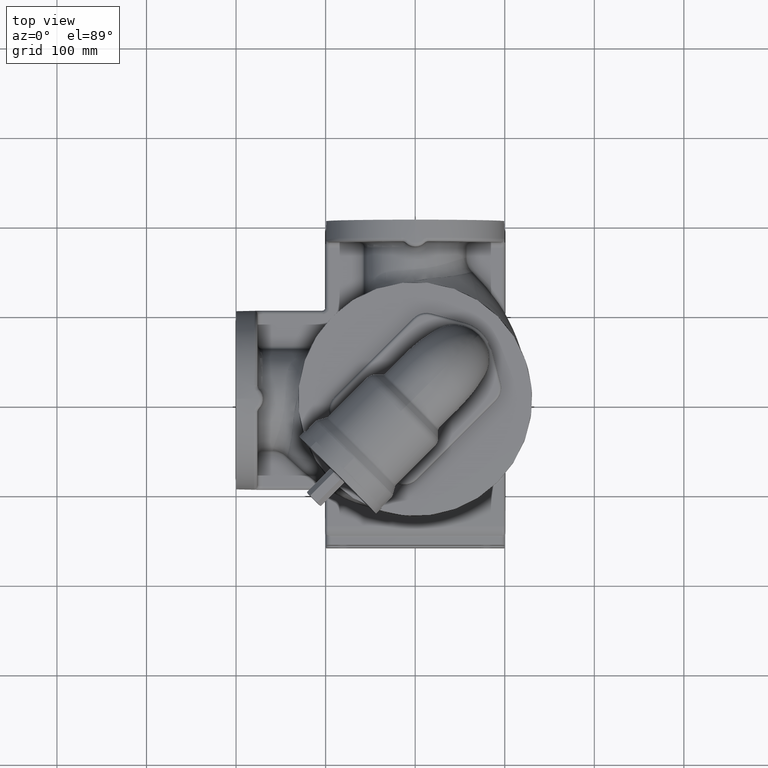
[diagram: clean part render]
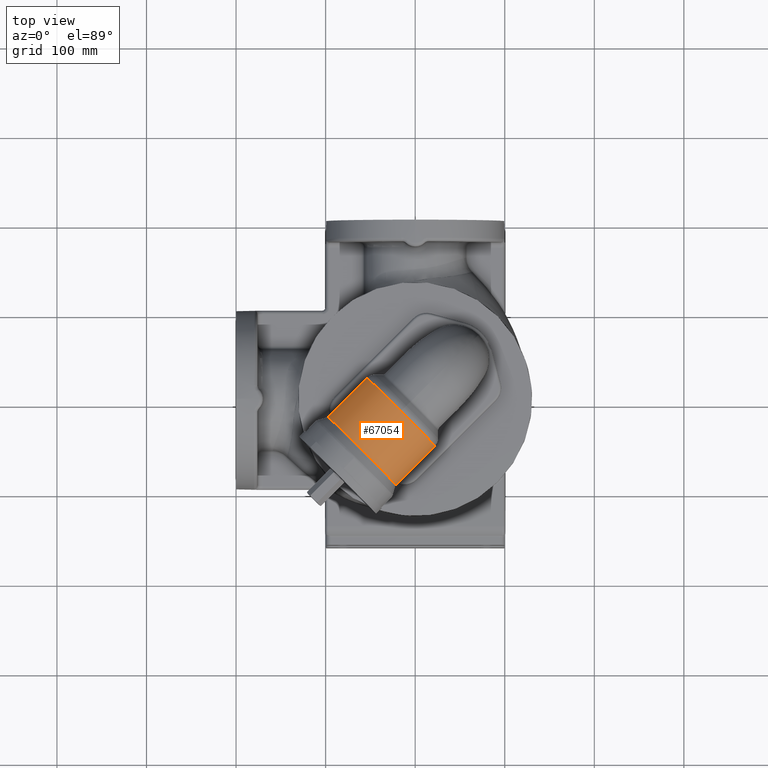
[diagram: same view with one face highlighted and labeled with its STEP entity id]
A machine part, top view. The second image highlights one B-rep face of the part: STEP entity #67054.
In plain terms, the highlighted cylindrical surface (partial cylindrical patch) has radius 54 mm, axis along (-0.7071, -0.7071, 0).
Its self-contained STEP definition (entity closure, byte-faithful):
#15534=CARTESIAN_POINT('',(-7.518984942224E0,-2.425918965083E1,
1.863133529900E2));
#15551=CARTESIAN_POINT('',(-2.425918965083E1,-7.518984942225E0,
1.863133529900E2));
#15583=CARTESIAN_POINT('',(-5.942235361104E1,-5.942235361104E1,2.39E2));
#15584=DIRECTION('',(-7.071067811865E-1,-7.071067811865E-1,0.E0));
#15585=DIRECTION('',(4.396053184643E-1,-4.396053184643E-1,-7.832587873467E-1));
#15586=AXIS2_PLACEMENT_3D('',#15583,#15584,#15585);
#15588=CARTESIAN_POINT('',(-8.316104080811E1,-3.568366641397E1,
1.967040254833E2));
#15589=CARTESIAN_POINT('',(-8.306502850757E1,-3.534713051201E1,
1.968390197705E2));
#15590=CARTESIAN_POINT('',(-8.286564048663E1,-3.467954031279E1,
1.971051392192E2));
#15591=CARTESIAN_POINT('',(-8.254484323903E1,-3.369327251899E1,
1.974924102545E2));
#15592=CARTESIAN_POINT('',(-8.220388502708E1,-3.272448906897E1,
1.978660577686E2));
#15593=CARTESIAN_POINT('',(-8.184413610980E1,-3.177446545072E1,
1.982248911215E2));
#15594=CARTESIAN_POINT('',(-8.146707413907E1,-3.084451051866E1,
1.985677987216E2));
#15595=CARTESIAN_POINT('',(-8.107403842639E1,-2.993535448442E1,
1.988939854637E2));
#15596=CARTESIAN_POINT('',(-8.066633700146E1,-2.904755217902E1,
1.992028128318E2));
#15597=CARTESIAN_POINT('',(-8.024517288405E1,-2.818136175681E1,
1.994938390296E2));
#15598=CARTESIAN_POINT('',(-7.981163747957E1,-2.733680532606E1,
1.997667860401E2));
#15599=CARTESIAN_POINT('',(-7.936669853628E1,-2.651369708532E1,
2.000215182625E2));
#15600=CARTESIAN_POINT('',(-7.891119133880E1,-2.571167203196E1,
2.002580197040E2));
#15601=CARTESIAN_POINT('',(-7.844582004519E1,-2.493022418164E1,
2.004763684417E2));
#15602=CARTESIAN_POINT('',(-7.797115920626E1,-2.416873561732E1,
2.006767151017E2));
#15603=CARTESIAN_POINT('',(-7.748765835416E1,-2.342650454800E1,
2.008592625184E2));
#15604=CARTESIAN_POINT('',(-7.699564735739E1,-2.270276905179E1,
2.010242478511E2));
#15605=CARTESIAN_POINT('',(-7.649534347989E1,-2.199672870046E1,
2.011719267888E2));
#15606=CARTESIAN_POINT('',(-7.598685900564E1,-2.130756304605E1,
2.013025601556E2));
#15607=CARTESIAN_POINT('',(-7.547020842808E1,-2.063444652139E1,
2.014164028436E2));
#15608=CARTESIAN_POINT('',(-7.494531617626E1,-1.997656083967E1,
2.015136952417E2));
#15609=CARTESIAN_POINT('',(-7.441202277915E1,-1.933310511943E1,
2.015946556314E2));
#15610=CARTESIAN_POINT('',(-7.387009080919E1,-1.870330410905E1,
2.016594743524E2));
#15611=CARTESIAN_POINT('',(-7.331921031410E1,-1.808641496513E1,
2.017083092750E2));
#15612=CARTESIAN_POINT('',(-7.275900376959E1,-1.748173287400E1,
2.017412824350E2));
#15613=CARTESIAN_POINT('',(-7.218903049802E1,-1.688859591752E1,
2.017584775201E2));
#15614=CARTESIAN_POINT('',(-7.160879116892E1,-1.630638891302E1,
2.017599388805E2));
#15615=CARTESIAN_POINT('',(-7.101773135568E1,-1.573454723198E1,
2.017456705610E2));
#15616=CARTESIAN_POINT('',(-7.041524502882E1,-1.517256075163E1,
2.017156358929E2));
#15617=CARTESIAN_POINT('',(-6.980067844788E1,-1.461997767538E1,
2.016697581898E2));
#15618=CARTESIAN_POINT('',(-6.917333429807E1,-1.407640857658E1,
2.016079221668E2));
#15619=CARTESIAN_POINT('',(-6.853247632262E1,-1.354153086131E1,
2.015299761214E2));
#15620=CARTESIAN_POINT('',(-6.787733492449E1,-1.301509314385E1,
2.014357355822E2));
#15621=CARTESIAN_POINT('',(-6.720711348481E1,-1.249692051207E1,
2.013249874909E2));
#15622=CARTESIAN_POINT('',(-6.652099618892E1,-1.198692102165E1,
2.011974952273E2));
#15623=CARTESIAN_POINT('',(-6.581815787531E1,-1.148509211859E1,
2.010530057395E2));
#15624=CARTESIAN_POINT('',(-6.509777605935E1,-1.099152763708E1,
2.008912583042E2));
#15625=CARTESIAN_POINT('',(-6.435904531977E1,-1.050642492501E1,
2.007119952269E2));
#15626=CARTESIAN_POINT('',(-6.360119442977E1,-1.003009160026E1,
2.005149748893E2));
#15627=CARTESIAN_POINT('',(-6.282350892471E1,-9.562954463037E0,
2.002999869615E2));
#15628=CARTESIAN_POINT('',(-6.202535420821E1,-9.105565090445E0,
2.000668698117E2));
#15629=CARTESIAN_POINT('',(-6.120620154747E1,-8.658603694146E0,
1.998155301727E2));
#15630=CARTESIAN_POINT('',(-6.036565743585E1,-8.222881071663E0,
1.995459649267E2));
#15631=CARTESIAN_POINT('',(-5.950349745353E1,-7.799338849711E0,
1.992582849396E2));
#15632=CARTESIAN_POINT('',(-5.861970387423E1,-7.389047064823E0,
1.989527402406E2));
#15633=CARTESIAN_POINT('',(-5.771449385641E1,-6.993191219113E0,
1.986297423352E2));
#15634=CARTESIAN_POINT('',(-5.678834578270E1,-6.613054763096E0,
1.982898841608E2));
#15635=CARTESIAN_POINT('',(-5.584201840707E1,-6.249994663437E0,
1.979339553098E2));
#15636=CARTESIAN_POINT('',(-5.487656692755E1,-5.905414721972E0,
1.975629519637E2));
#15637=CARTESIAN_POINT('',(-5.389334465663E1,-5.580730979201E0,
1.971780781700E2));
#15638=CARTESIAN_POINT('',(-5.289398212887E1,-5.277329066403E0,
1.967807345783E2));
#15639=CARTESIAN_POINT('',(-5.188035973802E1,-4.996524628351E0,
1.963724989568E2));
#15640=CARTESIAN_POINT('',(-5.085456781945E1,-4.739524755158E0,
1.959550975778E2));
#15641=CARTESIAN_POINT('',(-4.981885630432E1,-4.507395598150E0,
1.955303676972E2));
#15642=CARTESIAN_POINT('',(-4.877557071767E1,-4.301031347518E0,
1.951002141332E2));
#15643=CARTESIAN_POINT('',(-4.772709276878E1,-4.121135883663E0,
1.946665653586E2));
#15644=CARTESIAN_POINT('',(-4.667578384967E1,-3.968213625742E0,
1.942313311558E2));
#15645=CARTESIAN_POINT('',(-4.562393343464E1,-3.842569704073E0,
1.937963635551E2));
#15646=CARTESIAN_POINT('',(-4.457371048150E1,-3.744317946342E0,
1.933634215018E2));
#15647=CARTESIAN_POINT('',(-4.352713477947E1,-3.673394632357E0,
1.929341478520E2));
#15648=CARTESIAN_POINT('',(-4.248605588546E1,-3.629578122558E0,
1.925100517911E2));
#15649=CARTESIAN_POINT('',(-4.145214059986E1,-3.612510320344E0,
1.920924983311E2));
#15650=CARTESIAN_POINT('',(-4.042686680034E1,-3.621720029788E0,
1.916827030250E2));
#15651=CARTESIAN_POINT('',(-3.941152431180E1,-3.656645315277E0,
1.912817325687E2));
#15652=CARTESIAN_POINT('',(-3.840722710029E1,-3.716654043907E0,
1.908905119987E2));
#15653=CARTESIAN_POINT('',(-3.741492289141E1,-3.801063245867E0,
1.905098319741E2));
#15654=CARTESIAN_POINT('',(-3.643540610660E1,-3.909155926047E0,
1.901403585953E2));
#15655=CARTESIAN_POINT('',(-3.546933037254E1,-4.040196373249E0,
1.897826435338E2));
#15656=CARTESIAN_POINT('',(-3.451722319269E1,-4.193442002278E0,
1.894371357244E2));
#15657=CARTESIAN_POINT('',(-3.357950155235E1,-4.368153289005E0,
1.891041931975E2));
#15658=CARTESIAN_POINT('',(-3.265648434830E1,-4.563602299363E0,
1.887840935433E2));
#15659=CARTESIAN_POINT('',(-3.174840482566E1,-4.779079320227E0,
1.884770441521E2));
#15660=CARTESIAN_POINT('',(-3.085542013589E1,-5.013898886781E0,
1.881831910682E2));
#15661=CARTESIAN_POINT('',(-2.997762549306E1,-5.267402187418E0,
1.879026291550E2));
#15662=CARTESIAN_POINT('',(-2.911505767461E1,-5.538962003038E0,
1.876354080370E2));
#15663=CARTESIAN_POINT('',(-2.826770900213E1,-5.827983380465E0,
1.873815411497E2));
#15664=CARTESIAN_POINT('',(-2.743553826817E1,-6.133903491654E0,
1.871410128837E2));
#15665=CARTESIAN_POINT('',(-2.661845541011E1,-6.456201006225E0,
1.869137779874E2));
#15666=CARTESIAN_POINT('',(-2.581635102114E1,-6.794387473752E0,
1.866997742395E2));
#15667=CARTESIAN_POINT('',(-2.502913601726E1,-7.147993087418E0,
1.864989342112E2));
#15668=CARTESIAN_POINT('',(-2.451419148168E1,-7.393710994680E0,
1.863737657961E2));
#15669=CARTESIAN_POINT('',(-2.425918965083E1,-7.518984942225E0,
1.863133529900E2));
#15671=CARTESIAN_POINT('',(-1.588908729653E1,-1.588908729653E1,2.39E2));
#15672=DIRECTION('',(7.071067811865E-1,7.071067811865E-1,0.E0));
#15673=DIRECTION('',(-1.550018954500E-1,1.550018954500E-1,-9.756786483335E-1));
#15674=AXIS2_PLACEMENT_3D('',#15671,#15672,#15673);
#15676=CARTESIAN_POINT('',(-1.588908729653E1,-1.588908729653E1,2.39E2));
#15677=DIRECTION('',(-7.071067811865E-1,-7.071067811865E-1,0.E0));
#15678=DIRECTION('',(1.550018954500E-1,-1.550018954500E-1,-9.756786483335E-1));
#15679=AXIS2_PLACEMENT_3D('',#15676,#15677,#15678);
#15681=CARTESIAN_POINT('',(-7.518984942224E0,-2.425918965083E1,
1.863133529900E2));
#15682=CARTESIAN_POINT('',(-7.393711212220E0,-2.451419103663E1,
1.863737656911E2));
#15683=CARTESIAN_POINT('',(-7.147993538790E0,-2.502913509454E1,
1.864989339769E2));
#15684=CARTESIAN_POINT('',(-6.794387556791E0,-2.581635078240E1,
1.866997741737E2));
#15685=CARTESIAN_POINT('',(-6.456200442704E0,-2.661845675055E1,
1.869137783470E2));
#15686=CARTESIAN_POINT('',(-6.133902475706E0,-2.743554089717E1,
1.871410136282E2));
#15687=CARTESIAN_POINT('',(-5.827982433181E0,-2.826771178640E1,
1.873815419641E2));
#15688=CARTESIAN_POINT('',(-5.538961320792E0,-2.911505978528E1,
1.876354086788E2));
#15689=CARTESIAN_POINT('',(-5.267401424503E0,-2.997762793316E1,
1.879026299291E2));
#15690=CARTESIAN_POINT('',(-5.013898326181E0,-3.085542206943E1,
1.881831917064E2));
#15691=CARTESIAN_POINT('',(-4.779079025195E0,-3.174840633537E1,
1.884770446348E2));
#15692=CARTESIAN_POINT('',(-4.563601991675E0,-3.265648572183E1,
1.887840940152E2));
#15693=CARTESIAN_POINT('',(-4.368153100461E0,-3.357950221043E1,
1.891041934500E2));
#15694=CARTESIAN_POINT('',(-4.193442050666E0,-3.451722273131E1,
1.894371355766E2));
#15695=CARTESIAN_POINT('',(-4.040196774243E0,-3.546932838926E1,
1.897826427783E2));
#15696=CARTESIAN_POINT('',(-3.909156307030E0,-3.643540365420E1,
1.901403576527E2));
#15697=CARTESIAN_POINT('',(-3.801063409696E0,-3.741491969069E1,
1.905098308141E2));
#15698=CARTESIAN_POINT('',(-3.716654334691E0,-3.840722174250E1,
1.908905099769E2));
#15699=CARTESIAN_POINT('',(-3.656645832681E0,-3.941151585977E1,
1.912817292233E2));
#15700=CARTESIAN_POINT('',(-3.621720514269E0,-4.042685645322E1,
1.916826988134E2));
#15701=CARTESIAN_POINT('',(-3.612510155017E0,-4.145213032656E1,
1.920924942538E2));
#15702=CARTESIAN_POINT('',(-3.629577463775E0,-4.248604359148E1,
1.925100469437E2));
#15703=CARTESIAN_POINT('',(-3.673393735584E0,-4.352711853138E1,
1.929341412319E2));
#15704=CARTESIAN_POINT('',(-3.744316791864E0,-4.457369103202E1,
1.933634133233E2));
#15705=CARTESIAN_POINT('',(-3.842567830265E0,-4.562391429137E1,
1.937963555653E2));
#15706=CARTESIAN_POINT('',(-3.968210691951E0,-4.667576488361E1,
1.942313235099E2));
#15707=CARTESIAN_POINT('',(-4.121132243562E0,-4.772707193969E1,
1.946665569130E2));
#15708=CARTESIAN_POINT('',(-4.301027653066E0,-4.877554930900E1,
1.951002051573E2));
#15709=CARTESIAN_POINT('',(-4.507392027452E0,-4.981883695501E1,
1.955303594615E2));
#15710=CARTESIAN_POINT('',(-4.739520515537E0,-5.085455047841E1,
1.959550905488E2));
#15711=CARTESIAN_POINT('',(-4.996519924422E0,-5.188034430707E1,
1.963724930453E2));
#15712=CARTESIAN_POINT('',(-5.277325916398E0,-5.289397180311E1,
1.967807305119E2));
#15713=CARTESIAN_POINT('',(-5.580730476066E0,-5.389334156164E1,
1.971780766542E2));
#15714=CARTESIAN_POINT('',(-5.905415517724E0,-5.487656848779E1,
1.975629524035E2));
#15715=CARTESIAN_POINT('',(-6.249996113557E0,-5.584202337258E1,
1.979339574187E2));
#15716=CARTESIAN_POINT('',(-6.613058903055E0,-5.678835724261E1,
1.982898886546E2));
#15717=CARTESIAN_POINT('',(-6.993199544283E0,-5.771451335381E1,
1.986297493407E2));
#15718=CARTESIAN_POINT('',(-7.389058670574E0,-5.861972903121E1,
1.989527489018E2));
#15719=CARTESIAN_POINT('',(-7.799352385194E0,-5.950352578352E1,
1.992582945595E2));
#15720=CARTESIAN_POINT('',(-8.222896782302E0,-6.036568896584E1,
1.995459753761E2));
#15721=CARTESIAN_POINT('',(-8.658622806495E0,-6.120623760888E1,
1.998155415338E2));
#15722=CARTESIAN_POINT('',(-9.105587654848E0,-6.202539447844E1,
2.000668818431E2));
#15723=CARTESIAN_POINT('',(-9.562979953703E0,-6.282355245905E1,
2.002999993772E2));
#15724=CARTESIAN_POINT('',(-1.003011959894E1,-6.360124029840E1,
2.005149873276E2));
#15725=CARTESIAN_POINT('',(-1.050645576161E1,-6.435909338515E1,
2.007120073447E2));
#15726=CARTESIAN_POINT('',(-1.099156185130E1,-6.509782675331E1,
2.008912700044E2));
#15727=CARTESIAN_POINT('',(-1.148512943910E1,-6.581821100739E1,
2.010530170602E2));
#15728=CARTESIAN_POINT('',(-1.198696122671E1,-6.652105152987E1,
2.011975061460E2));
#15729=CARTESIAN_POINT('',(-1.249696354269E1,-6.720717077476E1,
2.013249978460E2));
#15730=CARTESIAN_POINT('',(-1.301513927646E1,-6.787739383002E1,
2.014357449120E2));
#15731=CARTESIAN_POINT('',(-1.354158028399E1,-6.853253640767E1,
2.015299839478E2));
#15732=CARTESIAN_POINT('',(-1.407646085098E1,-6.917339523157E1,
2.016079285479E2));
#15733=CARTESIAN_POINT('',(-1.462003223731E1,-6.980074002818E1,
2.016697633780E2));
#15734=CARTESIAN_POINT('',(-1.517261729416E1,-7.041530700941E1,
2.017156399224E2));
#15735=CARTESIAN_POINT('',(-1.573460562370E1,-7.101779341128E1,
2.017456732801E2));
#15736=CARTESIAN_POINT('',(-1.630644924026E1,-7.160885271529E1,
2.017599397859E2));
#15737=CARTESIAN_POINT('',(-1.688865803445E1,-7.218909095128E1,
2.017584762845E2));
#15738=CARTESIAN_POINT('',(-1.748179625337E1,-7.275906297121E1,
2.017412793352E2));
#15739=CARTESIAN_POINT('',(-1.808647910962E1,-7.331926839343E1,
2.017083047825E2));
#15740=CARTESIAN_POINT('',(-1.870336880837E1,-7.387014774711E1,
2.016594686179E2));
#15741=CARTESIAN_POINT('',(-1.933317032013E1,-7.441207836130E1,
2.015946485479E2));
#15742=CARTESIAN_POINT('',(-1.997662660009E1,-7.494536982984E1,
2.015136863623E2));
#15743=CARTESIAN_POINT('',(-2.063451272627E1,-7.547025993239E1,
2.014163921161E2));
#15744=CARTESIAN_POINT('',(-2.130762959474E1,-7.598690863397E1,
2.013025478814E2));
#15745=CARTESIAN_POINT('',(-2.199679558050E1,-7.649539172199E1,
2.011719133604E2));
#15746=CARTESIAN_POINT('',(-2.270283631138E1,-7.699569427392E1,
2.010242333056E2));
#15747=CARTESIAN_POINT('',(-2.342657233715E1,-7.748770367290E1,
2.008592465887E2));
#15748=CARTESIAN_POINT('',(-2.416880418675E1,-7.797120284639E1,
2.006766975969E2));
#15749=CARTESIAN_POINT('',(-2.493029405565E1,-7.844586249287E1,
2.004763493859E2));
#15750=CARTESIAN_POINT('',(-2.571174349692E1,-7.891123289363E1,
2.002579991619E2));
#15751=CARTESIAN_POINT('',(-2.651376928732E1,-7.936673861831E1,
2.000214964808E2));
#15752=CARTESIAN_POINT('',(-2.733687717905E1,-7.981167527329E1,
1.997667632563E2));
#15753=CARTESIAN_POINT('',(-2.818143428170E1,-8.024520903435E1,
1.994938150559E2));
#15754=CARTESIAN_POINT('',(-2.904762467990E1,-8.066637132807E1,
1.992027880662E2));
#15755=CARTESIAN_POINT('',(-2.993542863664E1,-8.107407163472E1,
1.988939593576E2));
#15756=CARTESIAN_POINT('',(-3.084457943613E1,-8.146710299608E1,
1.985677736490E2));
#15757=CARTESIAN_POINT('',(-3.177453246705E1,-8.184416225007E1,
1.982248660119E2));
#15758=CARTESIAN_POINT('',(-3.272455587882E1,-8.220390932855E1,
1.978660322259E2));
#15759=CARTESIAN_POINT('',(-3.369331740342E1,-8.254485834307E1,
1.974923928008E2));
#15760=CARTESIAN_POINT('',(-3.467956136863E1,-8.286564685456E1,
1.971051308386E2));
#15761=CARTESIAN_POINT('',(-3.534713740927E1,-8.306503048110E1,
1.968390170087E2));
#15762=CARTESIAN_POINT('',(-3.568366641396E1,-8.316104080811E1,
1.967040254833E2));
#23257=CARTESIAN_POINT('',(-1.588908729652E1,-1.588908729653E1,2.93E2));
#23259=VERTEX_POINT('',#23257);
#23298=VERTEX_POINT('',#15551);
#23302=VERTEX_POINT('',#15534);
#23304=VERTEX_POINT('',#15762);
#23320=CARTESIAN_POINT('',(-8.316104080811E1,-3.568366641397E1,
1.967040254833E2));
#23321=VERTEX_POINT('',#23320);
#67039=CARTESIAN_POINT('',(1.932169279592E1,1.932169279592E1,2.39E2));
#67040=DIRECTION('',(-7.071067811865E-1,-7.071067811865E-1,0.E0));
#67041=DIRECTION('',(0.E0,0.E0,-1.E0));
#67042=AXIS2_PLACEMENT_3D('',#67039,#67040,#67041);
#67043=CYLINDRICAL_SURFACE('',#67042,5.4E1);
#67045=ORIENTED_EDGE('',*,*,#67044,.T.);
#67047=ORIENTED_EDGE('',*,*,#67046,.T.);
#67048=ORIENTED_EDGE('',*,*,#67034,.T.);
#67049=ORIENTED_EDGE('',*,*,#66857,.F.);
#67051=ORIENTED_EDGE('',*,*,#67050,.T.);
#67052=EDGE_LOOP('',(#67045,#67047,#67048,#67049,#67051));
#67053=FACE_OUTER_BOUND('',#67052,.F.);
#67054=ADVANCED_FACE('',(#67053),#67043,.T.);
#15587=CIRCLE('',#15586,5.4E1);
#15670=B_SPLINE_CURVE_WITH_KNOTS('',3,(#15588,#15589,#15590,#15591,#15592,
#15593,#15594,#15595,#15596,#15597,#15598,#15599,#15600,#15601,#15602,#15603,
#15604,#15605,#15606,#15607,#15608,#15609,#15610,#15611,#15612,#15613,#15614,
#15615,#15616,#15617,#15618,#15619,#15620,#15621,#15622,#15623,#15624,#15625,
#15626,#15627,#15628,#15629,#15630,#15631,#15632,#15633,#15634,#15635,#15636,
#15637,#15638,#15639,#15640,#15641,#15642,#15643,#15644,#15645,#15646,#15647,
#15648,#15649,#15650,#15651,#15652,#15653,#15654,#15655,#15656,#15657,#15658,
#15659,#15660,#15661,#15662,#15663,#15664,#15665,#15666,#15667,#15668,#15669),
.UNSPECIFIED.,.F.,.F.,(4,1,1,1,1,1,1,1,1,1,1,1,1,1,1,1,1,1,1,1,1,1,1,1,1,1,1,1,
1,1,1,1,1,1,1,1,1,1,1,1,1,1,1,1,1,1,1,1,1,1,1,1,1,1,1,1,1,1,1,1,1,1,1,1,1,1,1,1,
1,1,1,1,1,1,1,1,1,1,1,4),(0.E0,1.265822784810E-2,2.531645569620E-2,
3.797468354430E-2,5.063291139241E-2,6.329113924051E-2,7.594936708861E-2,
8.860759493671E-2,1.012658227848E-1,1.139240506329E-1,1.265822784810E-1,
1.392405063291E-1,1.518987341772E-1,1.645569620253E-1,1.772151898734E-1,
1.898734177215E-1,2.025316455696E-1,2.151898734177E-1,2.278481012658E-1,
2.405063291139E-1,2.531645569620E-1,2.658227848101E-1,2.784810126582E-1,
2.911392405063E-1,3.037974683544E-1,3.164556962025E-1,3.291139240506E-1,
3.417721518987E-1,3.544303797468E-1,3.670886075949E-1,3.797468354430E-1,
3.924050632911E-1,4.050632911392E-1,4.177215189873E-1,4.303797468354E-1,
4.430379746835E-1,4.556962025316E-1,4.683544303797E-1,4.810126582278E-1,
4.936708860759E-1,5.063291139241E-1,5.189873417722E-1,5.316455696203E-1,
5.443037974684E-1,5.569620253165E-1,5.696202531646E-1,5.822784810127E-1,
5.949367088608E-1,6.075949367089E-1,6.202531645570E-1,6.329113924051E-1,
6.455696202532E-1,6.582278481013E-1,6.708860759494E-1,6.835443037975E-1,
6.962025316456E-1,7.088607594937E-1,7.215189873418E-1,7.341772151899E-1,
7.468354430380E-1,7.594936708861E-1,7.721518987342E-1,7.848101265823E-1,
7.974683544304E-1,8.101265822785E-1,8.227848101266E-1,8.354430379747E-1,
8.481012658228E-1,8.607594936709E-1,8.734177215190E-1,8.860759493671E-1,
8.987341772152E-1,9.113924050633E-1,9.240506329114E-1,9.367088607595E-1,
9.493670886076E-1,9.620253164557E-1,9.746835443038E-1,9.873417721519E-1,1.E0),
.UNSPECIFIED.);
#15675=CIRCLE('',#15674,5.4E1);
#15680=CIRCLE('',#15679,5.4E1);
#15763=B_SPLINE_CURVE_WITH_KNOTS('',3,(#15681,#15682,#15683,#15684,#15685,
#15686,#15687,#15688,#15689,#15690,#15691,#15692,#15693,#15694,#15695,#15696,
#15697,#15698,#15699,#15700,#15701,#15702,#15703,#15704,#15705,#15706,#15707,
#15708,#15709,#15710,#15711,#15712,#15713,#15714,#15715,#15716,#15717,#15718,
#15719,#15720,#15721,#15722,#15723,#15724,#15725,#15726,#15727,#15728,#15729,
#15730,#15731,#15732,#15733,#15734,#15735,#15736,#15737,#15738,#15739,#15740,
#15741,#15742,#15743,#15744,#15745,#15746,#15747,#15748,#15749,#15750,#15751,
#15752,#15753,#15754,#15755,#15756,#15757,#15758,#15759,#15760,#15761,#15762),
.UNSPECIFIED.,.F.,.F.,(4,1,1,1,1,1,1,1,1,1,1,1,1,1,1,1,1,1,1,1,1,1,1,1,1,1,1,1,
1,1,1,1,1,1,1,1,1,1,1,1,1,1,1,1,1,1,1,1,1,1,1,1,1,1,1,1,1,1,1,1,1,1,1,1,1,1,1,1,
1,1,1,1,1,1,1,1,1,1,1,4),(0.E0,1.265822784810E-2,2.531645569620E-2,
3.797468354430E-2,5.063291139241E-2,6.329113924051E-2,7.594936708861E-2,
8.860759493671E-2,1.012658227848E-1,1.139240506329E-1,1.265822784810E-1,
1.392405063291E-1,1.518987341772E-1,1.645569620253E-1,1.772151898734E-1,
1.898734177215E-1,2.025316455696E-1,2.151898734177E-1,2.278481012658E-1,
2.405063291139E-1,2.531645569620E-1,2.658227848101E-1,2.784810126582E-1,
2.911392405063E-1,3.037974683544E-1,3.164556962025E-1,3.291139240506E-1,
3.417721518987E-1,3.544303797468E-1,3.670886075949E-1,3.797468354430E-1,
3.924050632911E-1,4.050632911392E-1,4.177215189873E-1,4.303797468354E-1,
4.430379746835E-1,4.556962025316E-1,4.683544303797E-1,4.810126582278E-1,
4.936708860759E-1,5.063291139241E-1,5.189873417722E-1,5.316455696203E-1,
5.443037974684E-1,5.569620253165E-1,5.696202531646E-1,5.822784810127E-1,
5.949367088608E-1,6.075949367089E-1,6.202531645570E-1,6.329113924051E-1,
6.455696202532E-1,6.582278481013E-1,6.708860759494E-1,6.835443037975E-1,
6.962025316456E-1,7.088607594937E-1,7.215189873418E-1,7.341772151899E-1,
7.468354430380E-1,7.594936708861E-1,7.721518987342E-1,7.848101265823E-1,
7.974683544304E-1,8.101265822785E-1,8.227848101266E-1,8.354430379747E-1,
8.481012658228E-1,8.607594936709E-1,8.734177215190E-1,8.860759493671E-1,
8.987341772152E-1,9.113924050633E-1,9.240506329114E-1,9.367088607595E-1,
9.493670886076E-1,9.620253164557E-1,9.746835443038E-1,9.873417721519E-1,1.E0),
.UNSPECIFIED.);
#66857=EDGE_CURVE('',#23302,#23259,#15680,.T.);
#67034=EDGE_CURVE('',#23298,#23259,#15675,.T.);
#67044=EDGE_CURVE('',#23304,#23321,#15587,.T.);
#67046=EDGE_CURVE('',#23321,#23298,#15670,.T.);
#67050=EDGE_CURVE('',#23302,#23304,#15763,.T.);